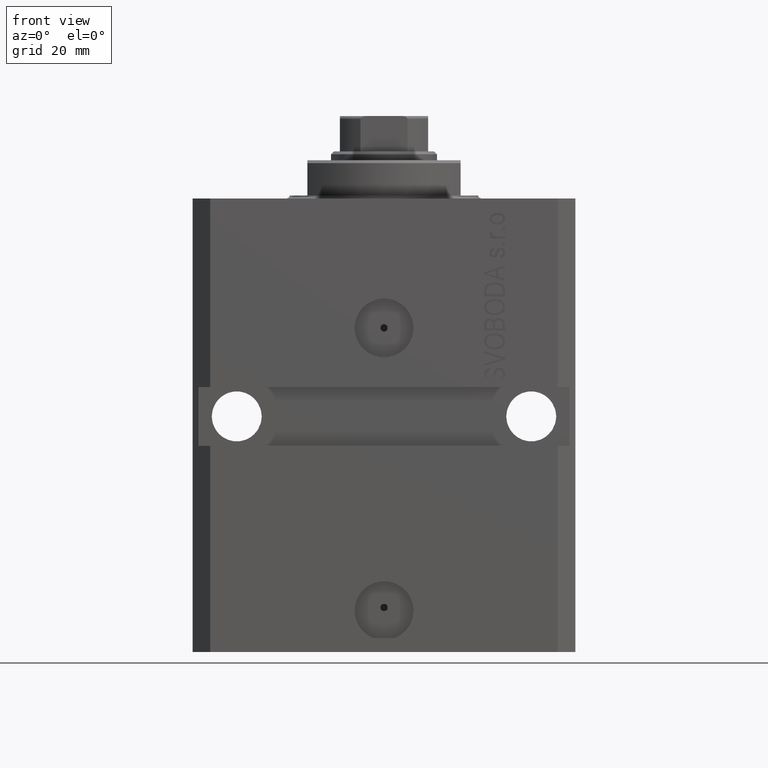
[diagram: clean part render]
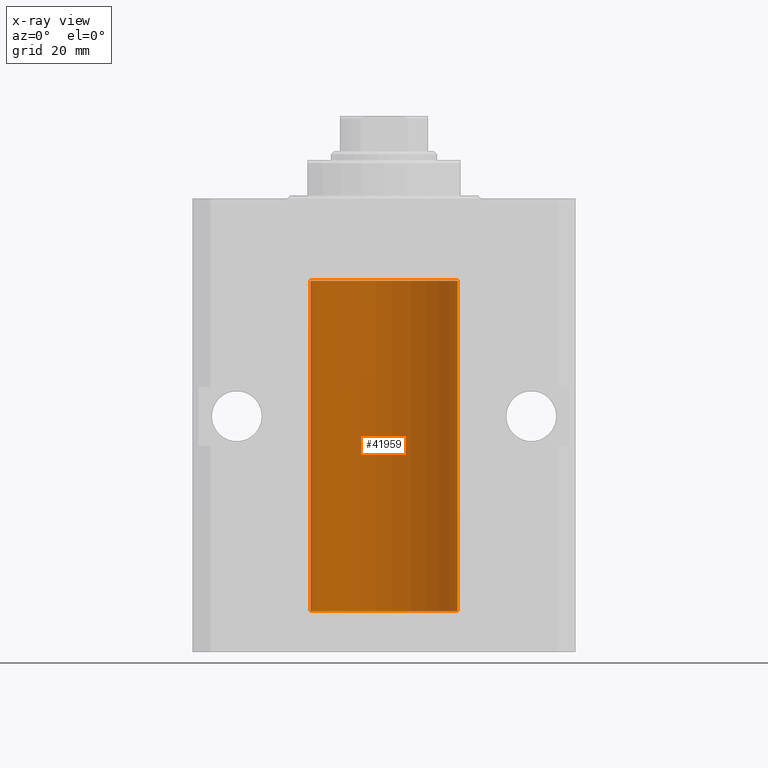
[diagram: x-ray — body ghosted, one internal face saturated and labeled with its STEP entity id]
A machine part, front view, then the same camera in x-ray: the body is ghosted and one INTERNAL B-rep face — a face not visible from any outside direction — is saturated and labeled: STEP entity #41959.
In plain terms, the highlighted cylindrical surface (partial cylindrical patch) has radius 12.5 mm, axis along (0, 0, 1).
Its self-contained STEP definition (entity closure, byte-faithful):
#36 = CARTESIAN_POINT ( 'NONE',  ( -12.49999999999999645, 0.08260426088728485550, -64.37499999999998579 ) ) ;
#69 = EDGE_CURVE ( 'NONE', #3173, #22882, #26946, .T. ) ;
#279 = CARTESIAN_POINT ( 'NONE',  ( -12.50000000000017941, 3.883381774819353300E-13, -65.62500000000359535 ) ) ;
#610 = VERTEX_POINT ( 'NONE', #36655 ) ;
#782 = B_SPLINE_CURVE_WITH_KNOTS ( 'NONE', 3,
 ( #33968, #5255, #30829, #23597, #4552, #27222, #45324, #19268 ),
 .UNSPECIFIED., .F., .F.,
 ( 4, 2, 2, 4 ),
 ( 5.872716678082737689E-20, 0.0002443481056285632140, 0.0004886962112571263195, 0.0009773924225142526390 ),
 .UNSPECIFIED. ) ;
#827 = EDGE_CURVE ( 'NONE', #22882, #21556, #782, .T. ) ;
#1297 = EDGE_CURVE ( 'NONE', #34101, #39442, #37977, .T. ) ;
#1387 = CARTESIAN_POINT ( 'NONE',  ( 12.48436522214846711, 0.6250000000078848039, -64.99999999999923261 ) ) ;
#2215 = DIRECTION ( 'NONE',  ( 1.000000000000000000, 0.000000000000000000, 0.000000000000000000 ) ) ;
#2291 = CARTESIAN_POINT ( 'NONE',  ( 12.49625698805481022, 0.3151108292486944906, -65.54593695688173227 ) ) ;
#2699 = DIRECTION ( 'NONE',  ( 0.000000000000000000, 0.000000000000000000, 1.000000000000000000 ) ) ;
#2810 = ORIENTED_EDGE ( 'NONE', *, *, #1297, .F. ) ;
#3173 = VERTEX_POINT ( 'NONE', #12508 ) ;
#4392 = VERTEX_POINT ( 'NONE', #28357 ) ;
#4546 = FACE_OUTER_BOUND ( 'NONE', #33413, .T. ) ;
#4552 = CARTESIAN_POINT ( 'NONE',  ( 12.49421963472024721, 0.3844519291903548686, -22.49947303647045871 ) ) ;
#4776 = CARTESIAN_POINT ( 'NONE',  ( 12.48436522214846711, 0.6250000000078848039, -64.99999999999923261 ) ) ;
#4819 = VECTOR ( 'NONE', #6538, 1000.000000000000000 ) ;
#5255 = CARTESIAN_POINT ( 'NONE',  ( 12.50000000000000178, 0.08262306818362646910, -22.62499999999997158 ) ) ;
#6142 = CARTESIAN_POINT ( 'NONE',  ( 12.48809900631782099, 0.5573988467445673001, -65.32640147935475738 ) ) ;
#6153 = EDGE_CURVE ( 'NONE', #39264, #19993, #21755, .T. ) ;
#6538 = DIRECTION ( 'NONE',  ( -0.000000000000000000, -0.000000000000000000, 1.000000000000000000 ) ) ;
#6775 = CARTESIAN_POINT ( 'NONE',  ( 0.000000000000000000, 0.000000000000000000, -70.09999999999999432 ) ) ;
#6851 = VECTOR ( 'NONE', #15346, 1000.000000000000000 ) ;
#6910 = CARTESIAN_POINT ( 'NONE',  ( 12.49012055744648997, 0.5002956126656082914, -64.61641710202404454 ) ) ;
#7031 = CARTESIAN_POINT ( 'NONE',  ( 12.50000000000000000, 0.000000000000000000, -70.09999999999999432 ) ) ;
#7114 = CARTESIAN_POINT ( 'NONE',  ( 12.48436522214846889, 0.6250000000078781426, -21.99999999999923261 ) ) ;
#7128 = ORIENTED_EDGE ( 'NONE', *, *, #12482, .F. ) ;
#7621 = EDGE_CURVE ( 'NONE', #31815, #39442, #11241, .T. ) ;
#7818 = CARTESIAN_POINT ( 'NONE',  ( 12.48436522214846889, 0.6250000000078781426, -21.99999999999923261 ) ) ;
#8307 = B_SPLINE_CURVE_WITH_KNOTS ( 'NONE', 3,
 ( #1387, #16103, #30812, #12491, #6910, #43115, #10053, #35634 ),
 .UNSPECIFIED., .F., .F.,
 ( 4, 2, 2, 4 ),
 ( 0.0009773924225142606621, 0.001221629287363811033, 0.001465866152213361404, 0.001954339881912461711 ),
 .UNSPECIFIED. ) ;
#8508 = AXIS2_PLACEMENT_3D ( 'NONE', #27216, #41937, #8880 ) ;
#8557 = LINE ( 'NONE', #16264, #27797 ) ;
#8880 = DIRECTION ( 'NONE',  ( 1.000000000000000000, 0.000000000000000000, 0.000000000000000000 ) ) ;
#8951 = DIRECTION ( 'NONE',  ( -0.000000000000000000, -0.000000000000000000, 1.000000000000000000 ) ) ;
#9264 = DIRECTION ( 'NONE',  ( -0.000000000000000000, -0.000000000000000000, 1.000000000000000000 ) ) ;
#9444 = VECTOR ( 'NONE', #37501, 1000.000000000000000 ) ;
#10053 = CARTESIAN_POINT ( 'NONE',  ( 12.49999999999999822, 0.1631389616600901760, -64.37500000000022737 ) ) ;
#10731 = CARTESIAN_POINT ( 'NONE',  ( 12.48810305280568222, 0.5461368461738450586, -21.68525466142676805 ) ) ;
#11130 = CARTESIAN_POINT ( 'NONE',  ( -12.49915784441386890, 0.1636601911727943726, -64.39126818989430490 ) ) ;
#11206 = CARTESIAN_POINT ( 'NONE',  ( 12.49999999999999112, 0.1631389616600886772, -21.37500000000019185 ) ) ;
#11241 = CIRCLE ( 'NONE', #14263, 12.50000000000000000 ) ;
#11358 = CARTESIAN_POINT ( 'NONE',  ( -12.48809959379011580, 0.5462151254764966435, -65.31461370481613926 ) ) ;
#11752 = CARTESIAN_POINT ( 'NONE',  ( 12.50000000000000000, 0.000000000000000000, -70.09999999999999432 ) ) ;
#11958 = CARTESIAN_POINT ( 'NONE',  ( -12.50000000000017941, 3.883381774819353300E-13, -65.62500000000359535 ) ) ;
#11971 = LINE ( 'NONE', #30536, #6851 ) ;
#12482 = EDGE_CURVE ( 'NONE', #41589, #27135, #29813, .T. ) ;
#12491 = CARTESIAN_POINT ( 'NONE',  ( 12.48810305280568222, 0.5461368461738485003, -64.68525466142676805 ) ) ;
#12508 = CARTESIAN_POINT ( 'NONE',  ( 12.50000000000017941, 3.868073689162038701E-13, -64.37499999999640465 ) ) ;
#13022 = EDGE_CURVE ( 'NONE', #34101, #610, #35043, .T. ) ;
#13611 = CARTESIAN_POINT ( 'NONE',  ( -12.50000000000000000, 1.530808498934191521E-15, -13.99999999999999822 ) ) ;
#14132 = CARTESIAN_POINT ( 'NONE',  ( 12.50000000000000000, -1.836039810331332019E-15, -65.62500000000000000 ) ) ;
#14263 = AXIS2_PLACEMENT_3D ( 'NONE', #26267, #40748, #29406 ) ;
#14318 = CARTESIAN_POINT ( 'NONE',  ( -12.50000000000000000, 0.08260426088729219685, -21.37500000000000000 ) ) ;
#14746 = CARTESIAN_POINT ( 'NONE',  ( -12.49422197749724361, 0.3843754434364307082, -64.50047099568097053 ) ) ;
#14823 = CARTESIAN_POINT ( 'NONE',  ( -12.50000000000000000, 1.530808498934191521E-15, -70.09999999999999432 ) ) ;
#14832 = CARTESIAN_POINT ( 'NONE',  ( 12.49012055744648997, 0.5002956126655978553, -21.61641710202404454 ) ) ;
#15075 = CARTESIAN_POINT ( 'NONE',  ( 12.50000000000017941, 3.868073565084946818E-13, -21.37499999999641176 ) ) ;
#15346 = DIRECTION ( 'NONE',  ( -0.000000000000000000, -0.000000000000000000, 1.000000000000000000 ) ) ;
#15525 = VECTOR ( 'NONE', #8951, 1000.000000000000000 ) ;
#16103 = CARTESIAN_POINT ( 'NONE',  ( 12.48436522214888100, 0.6249999999996834754, -64.91847339462351840 ) ) ;
#16264 = CARTESIAN_POINT ( 'NONE',  ( 12.50000000000000000, 0.000000000000000000, -70.09999999999999432 ) ) ;
#16826 = EDGE_CURVE ( 'NONE', #4392, #610, #11971, .T. ) ;
#18172 = CARTESIAN_POINT ( 'NONE',  ( -12.48809959379011403, 0.5462151254764975317, -22.31461370481611795 ) ) ;
#18361 = CARTESIAN_POINT ( 'NONE',  ( -12.50000000000000000, -1.053276923642966949E-14, -64.37500000000000000 ) ) ;
#18601 = CARTESIAN_POINT ( 'NONE',  ( -12.49631005746706514, 0.3253680783018499389, -65.55856740465391397 ) ) ;
#19024 = CYLINDRICAL_SURFACE ( 'NONE', #8508, 12.50000000000000000 ) ;
#19138 = B_SPLINE_CURVE_WITH_KNOTS ( 'NONE', 3,
 ( #7114, #29069, #44274, #10731, #14832, #21840, #11206, #36550 ),
 .UNSPECIFIED., .F., .F.,
 ( 4, 2, 2, 4 ),
 ( 0.0009773924225142526390, 0.001221629287363798890, 0.001465866152213344924, 0.001954339881912444798 ),
 .UNSPECIFIED. ) ;
#19268 = CARTESIAN_POINT ( 'NONE',  ( 12.48436522214846889, 0.6250000000078781426, -21.99999999999923261 ) ) ;
#19707 = DIRECTION ( 'NONE',  ( -0.000000000000000000, -0.000000000000000000, 1.000000000000000000 ) ) ;
#19993 = VERTEX_POINT ( 'NONE', #4776 ) ;
#20963 = ORIENTED_EDGE ( 'NONE', *, *, #13022, .T. ) ;
#21106 = CARTESIAN_POINT ( 'NONE',  ( -12.48810268015257563, 0.5573155909661349217, -21.67347410093867666 ) ) ;
#21556 = VERTEX_POINT ( 'NONE', #7818 ) ;
#21717 = ORIENTED_EDGE ( 'NONE', *, *, #827, .T. ) ;
#21755 = B_SPLINE_CURVE_WITH_KNOTS ( 'NONE', 3,
 ( #42817, #35819, #35574, #2291, #25426, #6142, #47140, #40141 ),
 .UNSPECIFIED., .F., .F.,
 ( 4, 2, 2, 4 ),
 ( 1.784246692340212412E-18, 0.0002443481056285665750, 0.0004886962112571313068, 0.0009773924225142606621 ),
 .UNSPECIFIED. ) ;
#21802 = CARTESIAN_POINT ( 'NONE',  ( -12.50000000000017941, 3.883381646606358354E-13, -22.62500000000358824 ) ) ;
#21840 = CARTESIAN_POINT ( 'NONE',  ( 12.49631206032075958, 0.3252904079142805438, -21.44139700214925526 ) ) ;
#22225 = CARTESIAN_POINT ( 'NONE',  ( -12.48520330846398174, 0.6088355886774118320, -65.16325431852561678 ) ) ;
#22372 = CARTESIAN_POINT ( 'NONE',  ( 12.50000000000000000, 0.000000000000000000, -13.99999999999999822 ) ) ;
#22882 = VERTEX_POINT ( 'NONE', #39817 ) ;
#23597 = CARTESIAN_POINT ( 'NONE',  ( 12.49625698805481200, 0.3151108292486943241, -22.54593695688172161 ) ) ;
#23641 = EDGE_CURVE ( 'NONE', #32954, #31815, #8557, .T. ) ;
#23735 = CARTESIAN_POINT ( 'NONE',  ( -12.50000000000000000, -2.089494013101375120E-17, -21.37499999999999645 ) ) ;
#24469 = CARTESIAN_POINT ( 'NONE',  ( -12.49915784441386890, 0.1636601911727947889, -21.39126818989430490 ) ) ;
#24712 = CARTESIAN_POINT ( 'NONE',  ( -12.49625855304193678, 0.3150454781038042329, -21.45402800297484802 ) ) ;
#24747 = ORIENTED_EDGE ( 'NONE', *, *, #46588, .T. ) ;
#25369 = CARTESIAN_POINT ( 'NONE',  ( -12.49625855304193500, 0.3150454781038046770, -64.45402800297485157 ) ) ;
#25426 = CARTESIAN_POINT ( 'NONE',  ( 12.49421963472024721, 0.3844519291903572555, -65.49947303647046226 ) ) ;
#25851 = CARTESIAN_POINT ( 'NONE',  ( -12.48810268015257741, 0.5573155909661293705, -64.67347410093867666 ) ) ;
#26267 = CARTESIAN_POINT ( 'NONE',  ( 0.000000000000000000, 0.000000000000000000, -13.99999999999999822 ) ) ;
#26946 = LINE ( 'NONE', #11752, #40984 ) ;
#27135 = VERTEX_POINT ( 'NONE', #43252 ) ;
#27216 = CARTESIAN_POINT ( 'NONE',  ( 0.000000000000000000, 0.000000000000000000, -70.09999999999999432 ) ) ;
#27222 = CARTESIAN_POINT ( 'NONE',  ( 12.48809900631782099, 0.5573988467445616379, -22.32640147935473962 ) ) ;
#27797 = VECTOR ( 'NONE', #9264, 1000.000000000000000 ) ;
#28357 = CARTESIAN_POINT ( 'NONE',  ( -12.50000000000000000, -1.053276923642966949E-14, -64.37500000000000000 ) ) ;
#28493 = CARTESIAN_POINT ( 'NONE',  ( 12.50000000000000000, 0.000000000000000000, -70.09999999999999432 ) ) ;
#28989 = CARTESIAN_POINT ( 'NONE',  ( -12.48436813453758809, 0.6249418250771181516, -64.83668996798922990 ) ) ;
#29037 = AXIS2_PLACEMENT_3D ( 'NONE', #6775, #2699, #2215 ) ;
#29069 = CARTESIAN_POINT ( 'NONE',  ( 12.48436522214888100, 0.6249999999996767031, -21.91847339462351130 ) ) ;
#29072 = B_SPLINE_CURVE_WITH_KNOTS ( 'NONE', 3,
 ( #18361, #36, #11130, #25369, #14746, #25851, #28989, #40564, #22225, #11358, #43714, #18601, #33312, #279 ),
 .UNSPECIFIED., .F., .F.,
 ( 4, 2, 2, 2, 2, 2, 4 ),
 ( 3.492495172846855184E-18, 0.0002442924852390798859, 0.0004885849704781563023, 0.0009771699409563386254, 0.001221462426195450658, 0.001465754911434562473, 0.001954339881912786538 ),
 .UNSPECIFIED. ) ;
#29406 = DIRECTION ( 'NONE',  ( 1.000000000000000000, 0.000000000000000000, 0.000000000000000000 ) ) ;
#29411 = ORIENTED_EDGE ( 'NONE', *, *, #32140, .T. ) ;
#29813 = CIRCLE ( 'NONE', #29037, 12.50000000000000000 ) ;
#30536 = CARTESIAN_POINT ( 'NONE',  ( -12.50000000000000000, 1.530808498934191521E-15, -70.09999999999999432 ) ) ;
#30812 = CARTESIAN_POINT ( 'NONE',  ( 12.48520578595314845, 0.6087855079133740466, -64.83656717509344958 ) ) ;
#30829 = CARTESIAN_POINT ( 'NONE',  ( 12.49915742890631876, 0.1636982395582408101, -22.60872397847025894 ) ) ;
#30973 = ORIENTED_EDGE ( 'NONE', *, *, #23641, .T. ) ;
#31666 = ORIENTED_EDGE ( 'NONE', *, *, #44682, .F. ) ;
#31815 = VERTEX_POINT ( 'NONE', #22372 ) ;
#31937 = CARTESIAN_POINT ( 'NONE',  ( -12.48436376893640443, 0.6250290278979917513, -22.08132082824473486 ) ) ;
#32140 = EDGE_CURVE ( 'NONE', #21556, #32954, #19138, .T. ) ;
#32400 = CARTESIAN_POINT ( 'NONE',  ( -12.50000000000000000, -2.089494013101375120E-17, -21.37499999999999645 ) ) ;
#32647 = CARTESIAN_POINT ( 'NONE',  ( -12.49999999999999289, 0.1631761135151241215, -22.62499999999984013 ) ) ;
#32665 = EDGE_CURVE ( 'NONE', #41589, #39264, #39822, .T. ) ;
#32954 = VERTEX_POINT ( 'NONE', #15075 ) ;
#33312 = CARTESIAN_POINT ( 'NONE',  ( -12.49999999999999822, 0.1631761135151225950, -65.62499999999985789 ) ) ;
#33413 = EDGE_LOOP ( 'NONE', ( #31666, #7128, #44921, #45063, #24747, #38108, #21717, #29411, #30973, #46712, #2810, #20963, #42818, #40383 ) ) ;
#33968 = CARTESIAN_POINT ( 'NONE',  ( 12.50000000000000000, -6.043189914290669986E-17, -22.62500000000000000 ) ) ;
#34101 = VERTEX_POINT ( 'NONE', #23735 ) ;
#34750 = LINE ( 'NONE', #38621, #15525 ) ;
#35043 = B_SPLINE_CURVE_WITH_KNOTS ( 'NONE', 3,
 ( #32400, #14318, #24469, #24712, #35567, #21106, #36276, #31937, #40134, #18172, #42811, #36040, #32647, #21802 ),
 .UNSPECIFIED., .F., .F.,
 ( 4, 2, 2, 2, 2, 2, 4 ),
 ( 2.030551168097110502E-20, 0.0002442924852390969078, 0.0004885849704781938157, 0.0009771699409563880650, 0.001221462426195485135, 0.001465754911434582423, 0.001954339881912776130 ),
 .UNSPECIFIED. ) ;
#35567 = CARTESIAN_POINT ( 'NONE',  ( -12.49422197749724006, 0.3843754434364375916, -21.50047099568095277 ) ) ;
#35574 = CARTESIAN_POINT ( 'NONE',  ( 12.49915742890631876, 0.1636982395582385896, -65.60872397847025184 ) ) ;
#35634 = CARTESIAN_POINT ( 'NONE',  ( 12.50000000000017941, 3.868073689162038701E-13, -64.37499999999640465 ) ) ;
#35819 = CARTESIAN_POINT ( 'NONE',  ( 12.49999999999999822, 0.08262306818362624705, -65.62500000000000000 ) ) ;
#36040 = CARTESIAN_POINT ( 'NONE',  ( -12.49631005746706336, 0.3253680783018528255, -22.55856740465392463 ) ) ;
#36276 = CARTESIAN_POINT ( 'NONE',  ( -12.48436813453758454, 0.6249418250771192618, -21.83668996798922635 ) ) ;
#36550 = CARTESIAN_POINT ( 'NONE',  ( 12.50000000000017941, 3.868073565084946818E-13, -21.37499999999641176 ) ) ;
#36655 = CARTESIAN_POINT ( 'NONE',  ( -12.50000000000017941, 3.883381646606358354E-13, -22.62500000000358824 ) ) ;
#37501 = DIRECTION ( 'NONE',  ( -0.000000000000000000, -0.000000000000000000, 1.000000000000000000 ) ) ;
#37977 = LINE ( 'NONE', #14823, #9444 ) ;
#38108 = ORIENTED_EDGE ( 'NONE', *, *, #69, .T. ) ;
#38621 = CARTESIAN_POINT ( 'NONE',  ( -12.50000000000000000, 1.530808498934191521E-15, -70.09999999999999432 ) ) ;
#39264 = VERTEX_POINT ( 'NONE', #14132 ) ;
#39442 = VERTEX_POINT ( 'NONE', #13611 ) ;
#39817 = CARTESIAN_POINT ( 'NONE',  ( 12.50000000000000000, -6.043189914290669986E-17, -22.62500000000000000 ) ) ;
#39822 = LINE ( 'NONE', #28493, #4819 ) ;
#40134 = CARTESIAN_POINT ( 'NONE',  ( -12.48520330846397819, 0.6088355886774127201, -22.16325431852561323 ) ) ;
#40141 = CARTESIAN_POINT ( 'NONE',  ( 12.48436522214846711, 0.6250000000078848039, -64.99999999999923261 ) ) ;
#40383 = ORIENTED_EDGE ( 'NONE', *, *, #47231, .T. ) ;
#40564 = CARTESIAN_POINT ( 'NONE',  ( -12.48436376893640265, 0.6250290278979918623, -65.08132082824472775 ) ) ;
#40748 = DIRECTION ( 'NONE',  ( 0.000000000000000000, 0.000000000000000000, 1.000000000000000000 ) ) ;
#40984 = VECTOR ( 'NONE', #19707, 1000.000000000000000 ) ;
#41589 = VERTEX_POINT ( 'NONE', #7031 ) ;
#41937 = DIRECTION ( 'NONE',  ( -0.000000000000000000, -0.000000000000000000, 1.000000000000000000 ) ) ;
#41959 = ADVANCED_FACE ( 'NONE', ( #4546 ), #19024, .F. ) ;
#42811 = CARTESIAN_POINT ( 'NONE',  ( -12.49011732893843529, 0.5003763274120274218, -22.38348111289287701 ) ) ;
#42817 = CARTESIAN_POINT ( 'NONE',  ( 12.50000000000000000, -1.836039810331332019E-15, -65.62500000000000000 ) ) ;
#42818 = ORIENTED_EDGE ( 'NONE', *, *, #16826, .F. ) ;
#43115 = CARTESIAN_POINT ( 'NONE',  ( 12.49631206032076136, 0.3252904079142934779, -64.44139700214927302 ) ) ;
#43252 = CARTESIAN_POINT ( 'NONE',  ( -12.50000000000000000, 1.530808498934191521E-15, -70.09999999999999432 ) ) ;
#43714 = CARTESIAN_POINT ( 'NONE',  ( -12.49011732893843885, 0.5003763274120245352, -65.38348111289289477 ) ) ;
#44274 = CARTESIAN_POINT ( 'NONE',  ( 12.48520578595314845, 0.6087855079133686065, -21.83656717509346024 ) ) ;
#44682 = EDGE_CURVE ( 'NONE', #27135, #46736, #34750, .T. ) ;
#44921 = ORIENTED_EDGE ( 'NONE', *, *, #32665, .T. ) ;
#45063 = ORIENTED_EDGE ( 'NONE', *, *, #6153, .T. ) ;
#45324 = CARTESIAN_POINT ( 'NONE',  ( 12.48436522214885080, 0.6250000000001435518, -22.16312747540306560 ) ) ;
#46588 = EDGE_CURVE ( 'NONE', #19993, #3173, #8307, .T. ) ;
#46712 = ORIENTED_EDGE ( 'NONE', *, *, #7621, .T. ) ;
#46736 = VERTEX_POINT ( 'NONE', #11958 ) ;
#47140 = CARTESIAN_POINT ( 'NONE',  ( 12.48436522214885969, 0.6250000000001505462, -65.16312747540307271 ) ) ;
#47231 = EDGE_CURVE ( 'NONE', #4392, #46736, #29072, .T. ) ;